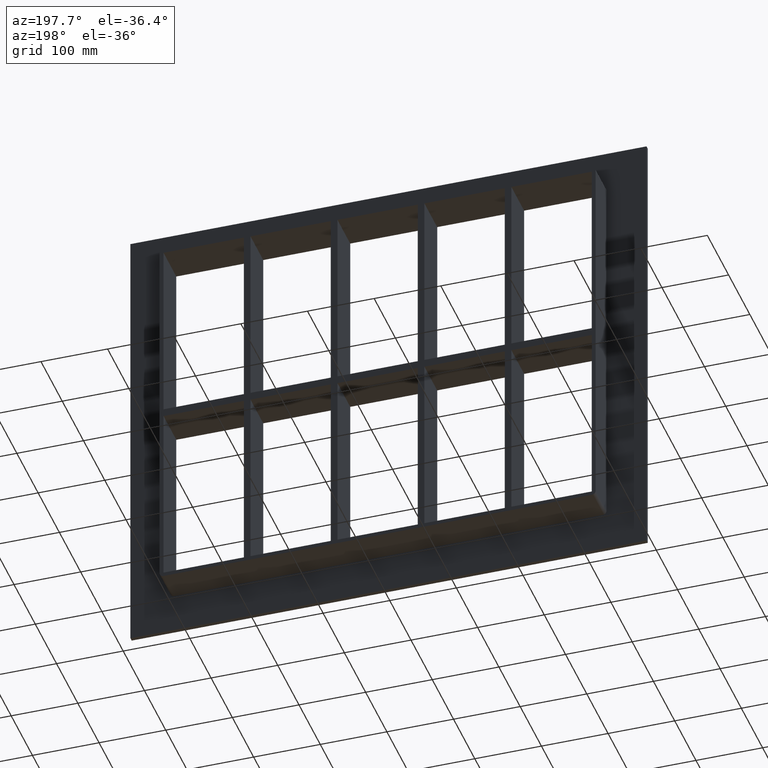
[diagram: clean part render]
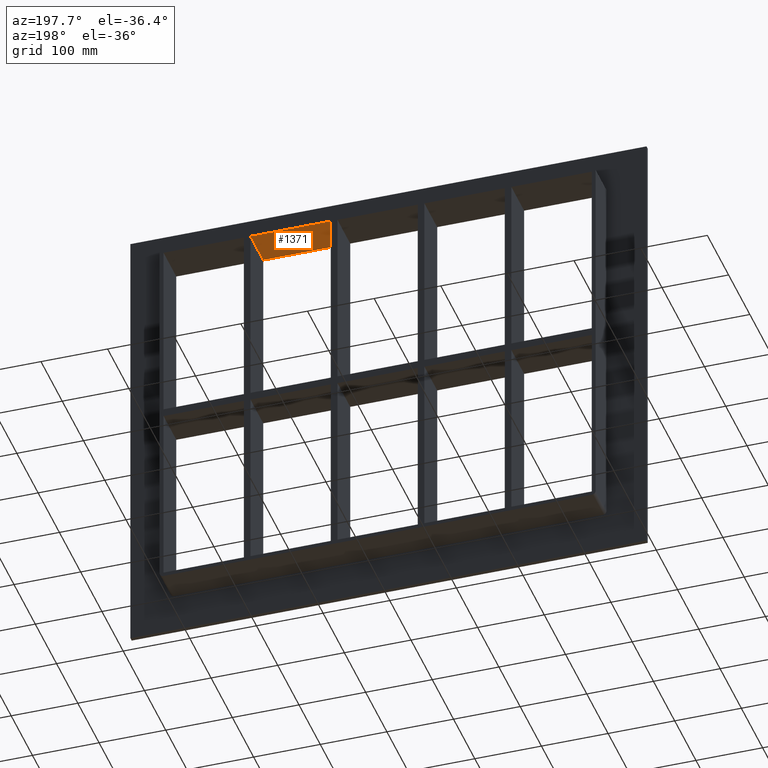
[diagram: same view with one face highlighted and labeled with its STEP entity id]
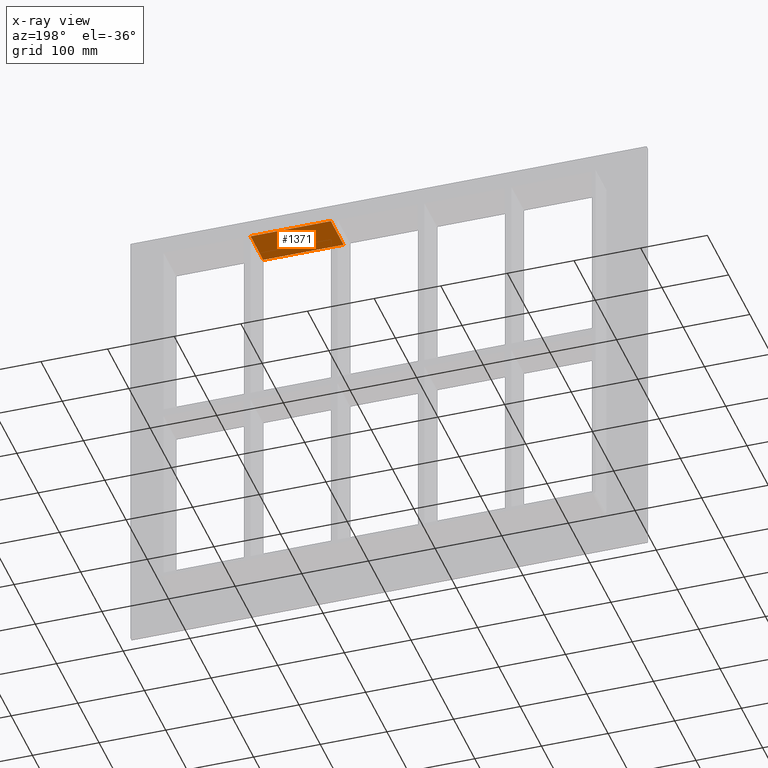
[diagram: x-ray of the same camera — body ghosted, the highlighted face saturated]
A machine part, auxiliary view. The second image highlights one B-rep face of the part: STEP entity #1371.
The next image is the same camera in x-ray: the body ghosted, the highlighted face saturated — about 0% of this face is hidden behind the body in this view.
In plain terms, the highlighted planar face has unit normal (0, 0, 1).
Its self-contained STEP definition (entity closure, byte-faithful):
#83=CARTESIAN_POINT('',(190.74999999999869,-3.0,284.00000000000006));
#84=VERTEX_POINT('',#83);
#91=CARTESIAN_POINT('',(190.74999999999869,57.0,284.00000000000006));
#92=VERTEX_POINT('',#91);
#93=CARTESIAN_POINT('',(190.74999999999869,57.000000000000007,284.00000000000006));
#94=DIRECTION('',(0.0,-1.0,0.0));
#95=VECTOR('',#94,60.000000000000007);
#96=LINE('',#93,#95);
#97=EDGE_CURVE('',#92,#84,#96,.T.);
#323=CARTESIAN_POINT('',(70.249999999992738,57.0,284.00000000000006));
#324=VERTEX_POINT('',#323);
#331=CARTESIAN_POINT('',(70.249999999992738,-3.0,284.00000000000006));
#332=VERTEX_POINT('',#331);
#333=CARTESIAN_POINT('',(70.249999999992738,-3.0,284.00000000000006));
#334=DIRECTION('',(0.0,1.0,0.0));
#335=VECTOR('',#334,60.000000000000007);
#336=LINE('',#333,#335);
#337=EDGE_CURVE('',#332,#324,#336,.T.);
#747=CARTESIAN_POINT('',(70.249999999992724,-3.0,284.00000000000006));
#748=DIRECTION('',(1.0,0.0,0.0));
#749=VECTOR('',#748,120.50000000000597);
#750=LINE('',#747,#749);
#751=EDGE_CURVE('',#332,#84,#750,.T.);
#1126=CARTESIAN_POINT('',(190.74999999999869,57.0,284.00000000000006));
#1127=DIRECTION('',(-1.0,0.0,0.0));
#1128=VECTOR('',#1127,120.50000000000597);
#1129=LINE('',#1126,#1128);
#1130=EDGE_CURVE('',#92,#324,#1129,.T.);
#1360=CARTESIAN_POINT('',(-321.25,0.0,284.00000000000006));
#1361=DIRECTION('',(0.0,0.0,1.0));
#1362=DIRECTION('',(1.0,0.0,0.0));
#1363=AXIS2_PLACEMENT_3D('',#1360,#1361,#1362);
#1364=PLANE('',#1363);
#1365=ORIENTED_EDGE('',*,*,#97,.T.);
#1366=ORIENTED_EDGE('',*,*,#751,.F.);
#1367=ORIENTED_EDGE('',*,*,#337,.T.);
#1368=ORIENTED_EDGE('',*,*,#1130,.F.);
#1369=EDGE_LOOP('',(#1365,#1366,#1367,#1368));
#1370=FACE_OUTER_BOUND('',#1369,.T.);
#1371=ADVANCED_FACE('',(#1370),#1364,.F.);